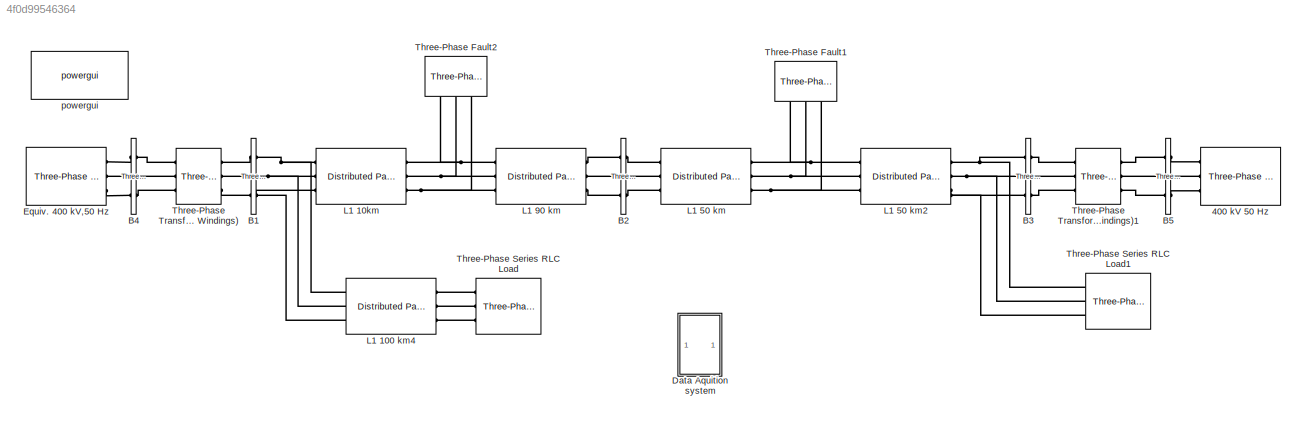
MODEL slx_4f0d99546364
KIND model
CONFIG AbsTol = auto
CONFIG EnableMultiTasking = on
CONFIG FixedStep = auto
CONFIG MaxStep = auto
CONFIG MinStep = auto
CONFIG RelTol = 1e-3
CONFIG SampleTimeConstraint = Unconstrained
CONFIG Solver = ode23tb
CONFIG SolverName = ode23tb
CONFIG StartTime = 0.0
CONFIG StopTime = 1
BLOCK [Reference] 400 kV 50 Hz  REF=powerlib/Electrical
Sources/Three-Phase Source
  Ports = [0, 0, 0, 0, 0, 0, 3]
  SourceBlock = powerlib/Electrical\nSources/Three-Phase Source
  SourceProductBaseCode = PS
  SourceProductName = Simscape Power Systems
  SourceType = Three-Phase Source
BLOCK [Reference] B1  REF=powerlib/Measurements/Three-Phase
V-I Measurement
  Ports = [0, 0, 0, 0, 0, 3, 3]
  SourceBlock = powerlib/Measurements/Three-Phase\nV-I Measurement
  SourceProductBaseCode = PS
  SourceProductName = Simscape Power Systems
  SourceType = Three-Phase VI Measurement
BLOCK [Reference] B2  REF=powerlib/Measurements/Three-Phase
V-I Measurement
  Ports = [0, 0, 0, 0, 0, 3, 3]
  SourceBlock = powerlib/Measurements/Three-Phase\nV-I Measurement
  SourceProductBaseCode = PS
  SourceProductName = Simscape Power Systems
  SourceType = Three-Phase VI Measurement
BLOCK [Reference] B3  REF=powerlib/Measurements/Three-Phase
V-I Measurement
  Ports = [0, 0, 0, 0, 0, 3, 3]
  SourceBlock = powerlib/Measurements/Three-Phase\nV-I Measurement
  SourceProductBaseCode = PS
  SourceProductName = Simscape Power Systems
  SourceType = Three-Phase VI Measurement
BLOCK [Reference] B4  REF=powerlib/Measurements/Three-Phase
V-I Measurement
  Ports = [0, 0, 0, 0, 0, 3, 3]
  SourceBlock = powerlib/Measurements/Three-Phase\nV-I Measurement
  SourceProductBaseCode = PS
  SourceProductName = Simscape Power Systems
  SourceType = Three-Phase VI Measurement
BLOCK [Reference] B5  REF=powerlib/Measurements/Three-Phase
V-I Measurement
  Ports = [0, 0, 0, 0, 0, 3, 3]
  SourceBlock = powerlib/Measurements/Three-Phase\nV-I Measurement
  SourceProductBaseCode = PS
  SourceProductName = Simscape Power Systems
  SourceType = Three-Phase VI Measurement
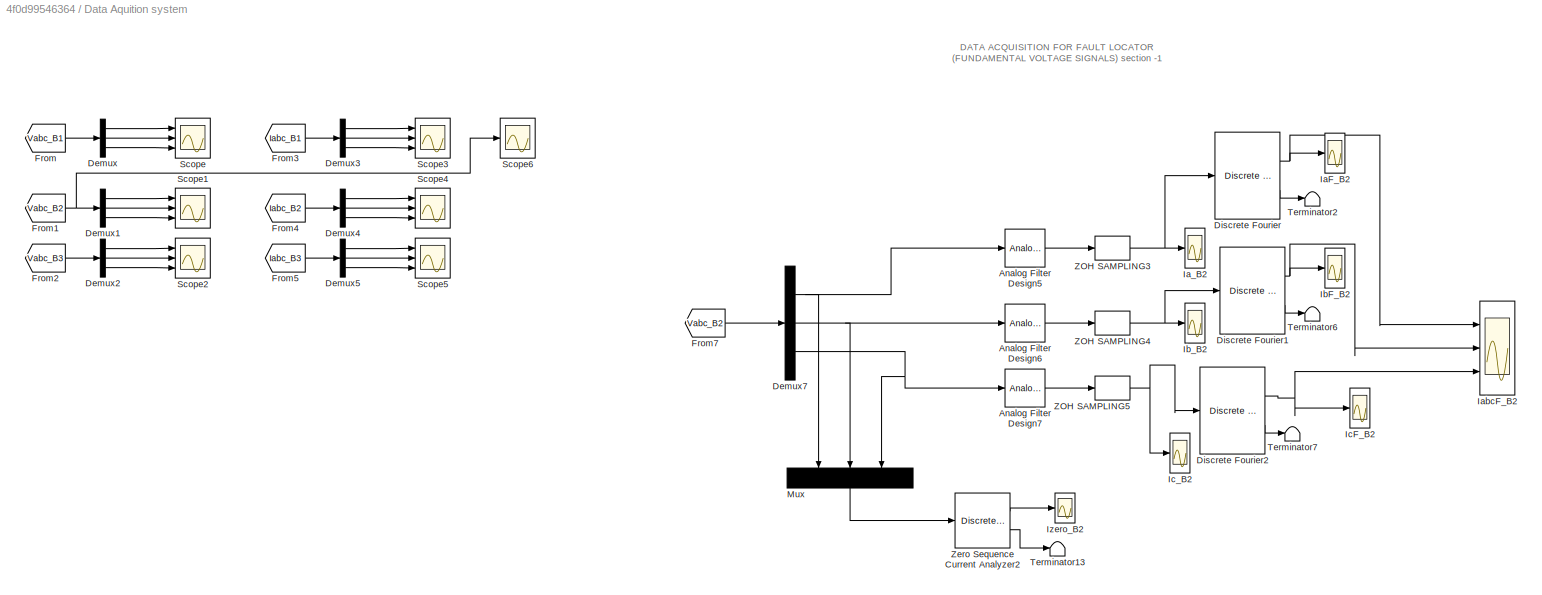
BLOCK [SubSystem] Data Aquition system
  Ports = []
  RequestExecContextInheritance = off
  Variant = off
BLOCK [Scope] Data Aquition system/ Izero_B2
  NumInputPorts = 1
  Ports = [1]
  ScopeSpecificationString = Simulink.scopes.TimeScopeBlockCfg('CurrentConfiguration', extmgr.ConfigurationSet(extmgr.Configuration('Core','General UI',true),extmgr.Configuration('Core','Source UI',true),extmgr.Configuration('Sources','WiredSimulink',true,'DataLogging',true,'DataLoggingVariableName','Izero_B2','DataLoggingMaxPoints','2001','SampleTime','1e-3','DataLoggingLimitDataPoints',true,'DataLoggingSaveFormat','Array','...<+1910ch>
BLOCK [Reference] Data Aquition system/Analog Filter Design5  REF=dsparch4/Analog
Filter Design
  Ports = [1, 1]
  SourceBlock = dsparch4/Analog\nFilter Design
  SourceProductBaseCode = DS
  SourceProductName = DSP System Toolbox
  SourceType = Analog Filter Design
BLOCK [Reference] Data Aquition system/Analog Filter Design6  REF=dsparch4/Analog
Filter Design
  Ports = [1, 1]
  SourceBlock = dsparch4/Analog\nFilter Design
  SourceProductBaseCode = DS
  SourceProductName = DSP System Toolbox
  SourceType = Analog Filter Design
BLOCK [Reference] Data Aquition system/Analog Filter Design7  REF=dsparch4/Analog
Filter Design
  Ports = [1, 1]
  SourceBlock = dsparch4/Analog\nFilter Design
  SourceProductBaseCode = DS
  SourceProductName = DSP System Toolbox
  SourceType = Analog Filter Design
BLOCK [Demux] Data Aquition system/Demux
  DisplayOption = bar
  Outputs = 3
  Ports = [1, 3]
BLOCK [Demux] Data Aquition system/Demux1
  DisplayOption = bar
  Outputs = 3
  Ports = [1, 3]
BLOCK [Demux] Data Aquition system/Demux2
  DisplayOption = bar
  Outputs = 3
  Ports = [1, 3]
BLOCK [Demux] Data Aquition system/Demux3
  DisplayOption = bar
  Outputs = 3
  Ports = [1, 3]
BLOCK [Demux] Data Aquition system/Demux4
  DisplayOption = bar
  Outputs = 3
  Ports = [1, 3]
BLOCK [Demux] Data Aquition system/Demux5
  DisplayOption = bar
  Outputs = 3
  Ports = [1, 3]
BLOCK [Demux] Data Aquition system/Demux7
  DisplayOption = bar
  Outputs = 3
  Ports = [1, 3]
BLOCK [Reference] Data Aquition system/Discrete Fourier  REF=powerlib_extras/Discrete
Measurements/Discrete 
Fourier
  Ports = [1, 2]
  SourceBlock = powerlib_extras/Discrete\nMeasurements/Discrete \nFourier
  SourceType = Discrete Fourier
BLOCK [Reference] Data Aquition system/Discrete Fourier1  REF=powerlib_extras/Discrete
Measurements/Discrete 
Fourier
  Ports = [1, 2]
  SourceBlock = powerlib_extras/Discrete\nMeasurements/Discrete \nFourier
  SourceType = Discrete Fourier
BLOCK [Reference] Data Aquition system/Discrete Fourier2  REF=powerlib_extras/Discrete
Measurements/Discrete 
Fourier
  Ports = [1, 2]
  SourceBlock = powerlib_extras/Discrete\nMeasurements/Discrete \nFourier
  SourceType = Discrete Fourier
BLOCK [From] Data Aquition system/From
  GotoTag = Vabc_B1
  TagVisibility = global
BLOCK [From] Data Aquition system/From1
  GotoTag = Vabc_B2
  TagVisibility = global
BLOCK [From] Data Aquition system/From2
  GotoTag = Vabc_B3
  TagVisibility = global
BLOCK [From] Data Aquition system/From3
  GotoTag = Iabc_B1
  TagVisibility = global
BLOCK [From] Data Aquition system/From4
  GotoTag = Iabc_B2
  TagVisibility = global
BLOCK [From] Data Aquition system/From5
  GotoTag = Iabc_B3
  TagVisibility = global
BLOCK [From] Data Aquition system/From7
  GotoTag = Vabc_B2
  TagVisibility = global
BLOCK [Scope] Data Aquition system/IaF_B2
  NumInputPorts = 1
  Ports = [1]
  ScopeSpecificationString = Simulink.scopes.TimeScopeBlockCfg('CurrentConfiguration', extmgr.ConfigurationSet(extmgr.Configuration('Core','General UI',true),extmgr.Configuration('Core','Source UI',true),extmgr.Configuration('Sources','WiredSimulink',true,'DataLogging',true,'DataLoggingVariableName','IaF_B2','DataLoggingMaxPoints','2000','SampleTime','1e-3','DataLoggingSaveFormat','Array','DataLoggingDecimation','1','DataLogg...<+1864ch>
BLOCK [Scope] Data Aquition system/Ia_B2
  NumInputPorts = 1
  Ports = [1]
  ScopeSpecificationString = Simulink.scopes.TimeScopeBlockCfg('CurrentConfiguration', extmgr.ConfigurationSet(extmgr.Configuration('Core','General UI',true),extmgr.Configuration('Core','Source UI',true),extmgr.Configuration('Sources','WiredSimulink',true,'DataLogging',true,'DataLoggingVariableName','Ia_B2','DataLoggingMaxPoints','2000','SampleTime','1e-3','DataLoggingSaveFormat','Array','DataLoggingDecimation','1','DataLoggi...<+1856ch>
BLOCK [Scope] Data Aquition system/IabcF_B2
  NumInputPorts = 3
  Ports = [3]
  ScopeSpecificationString = Simulink.scopes.TimeScopeBlockCfg('CurrentConfiguration', extmgr.ConfigurationSet(extmgr.Configuration('Core','General UI',true),extmgr.Configuration('Core','Source UI',true),extmgr.Configuration('Sources','WiredSimulink',true,'DataLogging',true,'DataLoggingVariableName','Iabcf_B2','DataLoggingSaveFormat','Structure','DataLoggingMaxPoints','2000','SampleTime','1e-3','DataLoggingDecimation','1','Da...<+3266ch>
BLOCK [Scope] Data Aquition system/IbF_B2
  NumInputPorts = 1
  Ports = [1]
  ScopeSpecificationString = Simulink.scopes.TimeScopeBlockCfg('CurrentConfiguration', extmgr.ConfigurationSet(extmgr.Configuration('Core','General UI',true),extmgr.Configuration('Core','Source UI',true),extmgr.Configuration('Sources','WiredSimulink',true,'DataLogging',true,'DataLoggingVariableName','IbF_B2','DataLoggingMaxPoints','2000','SampleTime','1e-3','DataLoggingSaveFormat','Array','DataLoggingDecimation','1','DataLogg...<+1907ch>
BLOCK [Scope] Data Aquition system/Ib_B2
  NumInputPorts = 1
  Ports = [1]
  ScopeSpecificationString = Simulink.scopes.TimeScopeBlockCfg('CurrentConfiguration', extmgr.ConfigurationSet(extmgr.Configuration('Core','General UI',true),extmgr.Configuration('Core','Source UI',true),extmgr.Configuration('Sources','WiredSimulink',true,'DataLogging',true,'DataLoggingVariableName','Ib_B2','DataLoggingMaxPoints','2000','SampleTime','1e-3','DataLoggingSaveFormat','Array','DataLoggingDecimation','1','DataLoggi...<+1854ch>
BLOCK [Scope] Data Aquition system/IcF_B2
  NumInputPorts = 1
  Ports = [1]
  ScopeSpecificationString = Simulink.scopes.TimeScopeBlockCfg('CurrentConfiguration', extmgr.ConfigurationSet(extmgr.Configuration('Core','General UI',true),extmgr.Configuration('Core','Source UI',true),extmgr.Configuration('Sources','WiredSimulink',true,'DataLogging',true,'DataLoggingVariableName','IcF_B2','DataLoggingMaxPoints','2000','SampleTime','1e-3','DataLoggingSaveFormat','Array','DataLoggingDecimation','1','DataLogg...<+1854ch>
BLOCK [Scope] Data Aquition system/Ic_B2
  NumInputPorts = 1
  Ports = [1]
  ScopeSpecificationString = Simulink.scopes.TimeScopeBlockCfg('CurrentConfiguration', extmgr.ConfigurationSet(extmgr.Configuration('Core','General UI',true),extmgr.Configuration('Core','Source UI',true),extmgr.Configuration('Sources','WiredSimulink',true,'DataLogging',true,'DataLoggingVariableName','Ic_B2','DataLoggingMaxPoints','2000','SampleTime','1e-3','DataLoggingSaveFormat','Array','DataLoggingDecimation','1','DataLoggi...<+1713ch>
BLOCK [Mux] Data Aquition system/Mux
  DisplayOption = bar
  Inputs = 3
  Ports = [3, 1]
BLOCK [Scope] Data Aquition system/Scope
  NumInputPorts = 3
  Ports = [3]
  ScopeSpecificationString = Simulink.scopes.TimeScopeBlockCfg('CurrentConfiguration', extmgr.ConfigurationSet(extmgr.Configuration('Core','General UI',true),extmgr.Configuration('Core','Source UI',true),extmgr.Configuration('Sources','WiredSimulink',true,'DataLoggingSaveFormat','StructureWithTime','DataLoggingDecimation','1'),extmgr.Configuration('Visuals','Time Domain',true,'TimeAxisLabels','All','SerializedDisplays',{struc...<+3007ch>
BLOCK [Scope] Data Aquition system/Scope1
  NumInputPorts = 3
  Ports = [3]
  ScopeSpecificationString = Simulink.scopes.TimeScopeBlockCfg('CurrentConfiguration', extmgr.ConfigurationSet(extmgr.Configuration('Core','General UI',true),extmgr.Configuration('Core','Source UI',true),extmgr.Configuration('Sources','WiredSimulink',true,'DataLoggingSaveFormat','StructureWithTime','DataLoggingDecimation','1','DataLoggingVariableName','ScopeData1'),extmgr.Configuration('Visuals','Time Domain',true,'TimeAxisLa...<+3049ch>
BLOCK [Scope] Data Aquition system/Scope2
  NumInputPorts = 3
  Ports = [3]
  ScopeSpecificationString = Simulink.scopes.TimeScopeBlockCfg('CurrentConfiguration', extmgr.ConfigurationSet(extmgr.Configuration('Core','General UI',true),extmgr.Configuration('Core','Source UI',true),extmgr.Configuration('Sources','WiredSimulink',true,'DataLoggingSaveFormat','StructureWithTime','DataLoggingDecimation','1','DataLoggingVariableName','ScopeData2'),extmgr.Configuration('Visuals','Time Domain',true,'TimeAxisLa...<+2982ch>
BLOCK [Scope] Data Aquition system/Scope3
  NumInputPorts = 3
  Ports = [3]
  ScopeSpecificationString = Simulink.scopes.TimeScopeBlockCfg('CurrentConfiguration', extmgr.ConfigurationSet(extmgr.Configuration('Core','General UI',true),extmgr.Configuration('Core','Source UI',true),extmgr.Configuration('Sources','WiredSimulink',true,'DataLoggingSaveFormat','Array','DataLoggingDecimation','1','DataLoggingVariableName','ScopeData3'),extmgr.Configuration('Visuals','Time Domain',true,'TimeAxisLabels','All',...<+3097ch>
BLOCK [Scope] Data Aquition system/Scope4
  NumInputPorts = 3
  Ports = [3]
  ScopeSpecificationString = Simulink.scopes.TimeScopeBlockCfg('CurrentConfiguration', extmgr.ConfigurationSet(extmgr.Configuration('Core','General UI',true),extmgr.Configuration('Core','Source UI',true),extmgr.Configuration('Sources','WiredSimulink',true,'DataLoggingSaveFormat','StructureWithTime','DataLoggingDecimation','1','DataLoggingVariableName','ScopeData4'),extmgr.Configuration('Visuals','Time Domain',true,'TimeAxisLa...<+3347ch>
BLOCK [Scope] Data Aquition system/Scope5
  NumInputPorts = 3
  Ports = [3]
  ScopeSpecificationString = Simulink.scopes.TimeScopeBlockCfg('CurrentConfiguration', extmgr.ConfigurationSet(extmgr.Configuration('Core','General UI',true),extmgr.Configuration('Core','Source UI',true),extmgr.Configuration('Sources','WiredSimulink',true,'DataLoggingSaveFormat','StructureWithTime','DataLoggingDecimation','1','DataLoggingVariableName','ScopeData5'),extmgr.Configuration('Visuals','Time Domain',true,'TimeAxisLa...<+2984ch>
BLOCK [Scope] Data Aquition system/Scope6
  NumInputPorts = 1
  Ports = [1]
  ScopeSpecificationString = Simulink.scopes.TimeScopeBlockCfg('CurrentConfiguration', extmgr.ConfigurationSet(extmgr.Configuration('Core','General UI',true),extmgr.Configuration('Core','Source UI',true),extmgr.Configuration('Sources','WiredSimulink',true,'DataLoggingSaveFormat','Array','DataLoggingDecimation','1','DataLoggingVariableName','ScopeData6','DataLogging',true),extmgr.Configuration('Visuals','Time Domain',true,'Tim...<+3426ch>
BLOCK [Terminator] Data Aquition system/Terminator13
BLOCK [Terminator] Data Aquition system/Terminator2
BLOCK [Terminator] Data Aquition system/Terminator6
BLOCK [Terminator] Data Aquition system/Terminator7
BLOCK [ZeroOrderHold] Data Aquition system/ZOH SAMPLING3
  SampleTime = 1e-3
BLOCK [ZeroOrderHold] Data Aquition system/ZOH SAMPLING4
  SampleTime = 1e-3
BLOCK [ZeroOrderHold] Data Aquition system/ZOH SAMPLING5
  SampleTime = 1e-3
BLOCK [Reference] Data Aquition system/Zero Sequence Current Analyzer2  REF=powerlib_extras/Discrete
Measurements/Discrete 3-phase
Sequence Analyzer
  Ports = [1, 2]
  SourceBlock = powerlib_extras/Discrete\nMeasurements/Discrete 3-phase\nSequence Analyzer
  SourceType = Discrete 3-Phase Sequence Analyzer
BLOCK [Reference] Equiv. 400 kV,50 Hz  REF=powerlib/Electrical
Sources/Three-Phase Source
  Ports = [0, 0, 0, 0, 0, 0, 3]
  SourceBlock = powerlib/Electrical\nSources/Three-Phase Source
  SourceProductBaseCode = PS
  SourceProductName = Simscape Power Systems
  SourceType = Three-Phase Source
BLOCK [Reference] L1 100 km4  REF=powerlib/Elements/Distributed Parameters Line
  AttributesFormatString = \n
  Ports = [0, 0, 0, 0, 0, 3, 3]
  SourceBlock = powerlib/Elements/Distributed Parameters Line
  SourceProductBaseCode = PS
  SourceProductName = Simscape Power Systems
  SourceType = Distributed Parameters Line
BLOCK [Reference] L1 10km  REF=powerlib/Elements/Distributed Parameters Line
  AttributesFormatString = \n
  Ports = [0, 0, 0, 0, 0, 3, 3]
  SourceBlock = powerlib/Elements/Distributed Parameters Line
  SourceProductBaseCode = PS
  SourceProductName = Simscape Power Systems
  SourceType = Distributed Parameters Line
BLOCK [Reference] L1 50 km  REF=powerlib/Elements/Distributed Parameters Line
  AttributesFormatString = \n
  Ports = [0, 0, 0, 0, 0, 3, 3]
  SourceBlock = powerlib/Elements/Distributed Parameters Line
  SourceProductBaseCode = PS
  SourceProductName = Simscape Power Systems
  SourceType = Distributed Parameters Line
BLOCK [Reference] L1 50 km2  REF=powerlib/Elements/Distributed Parameters Line
  AttributesFormatString = \n
  Ports = [0, 0, 0, 0, 0, 3, 3]
  SourceBlock = powerlib/Elements/Distributed Parameters Line
  SourceProductBaseCode = PS
  SourceProductName = Simscape Power Systems
  SourceType = Distributed Parameters Line
BLOCK [Reference] L1 90 km  REF=powerlib/Elements/Distributed Parameters Line
  AttributesFormatString = \n
  Ports = [0, 0, 0, 0, 0, 3, 3]
  SourceBlock = powerlib/Elements/Distributed Parameters Line
  SourceProductBaseCode = PS
  SourceProductName = Simscape Power Systems
  SourceType = Distributed Parameters Line
BLOCK [Reference] Three-Phase Fault1  REF=powerlib/Elements/Three-Phase Fault
  Ports = [0, 0, 0, 0, 0, 3]
  SourceBlock = powerlib/Elements/Three-Phase Fault
  SourceProductBaseCode = PS
  SourceProductName = Simscape Power Systems
  SourceType = Three-Phase Fault
BLOCK [Reference] Three-Phase Fault2  REF=powerlib/Elements/Three-Phase Fault
  Ports = [0, 0, 0, 0, 0, 3]
  SourceBlock = powerlib/Elements/Three-Phase Fault
  SourceProductBaseCode = PS
  SourceProductName = Simscape Power Systems
  SourceType = Three-Phase Fault
BLOCK [Reference] Three-Phase Series RLC Load  REF=powerlib/Elements/Three-Phase
Series RLC Load
  AttributesFormatString = \n
  Ports = [0, 0, 0, 0, 0, 3]
  SourceBlock = powerlib/Elements/Three-Phase\nSeries RLC Load
  SourceProductBaseCode = PS
  SourceProductName = Simscape Power Systems
  SourceType = Three-Phase Series RLC Load
BLOCK [Reference] Three-Phase Series RLC Load1  REF=powerlib/Elements/Three-Phase
Series RLC Load
  AttributesFormatString = \n
  Ports = [0, 0, 0, 0, 0, 3]
  SourceBlock = powerlib/Elements/Three-Phase\nSeries RLC Load
  SourceProductBaseCode = PS
  SourceProductName = Simscape Power Systems
  SourceType = Three-Phase Series RLC Load
BLOCK [Reference] Three-Phase Transformer (Two Windings)  REF=powerlib/Elements/Three-Phase
Transformer
(Two Windings)
  Ports = [0, 0, 0, 0, 0, 3, 3]
  SourceBlock = powerlib/Elements/Three-Phase\nTransformer\n(Two Windings)
  SourceProductBaseCode = PS
  SourceProductName = Simscape Power Systems
  SourceType = Three-Phase Transformer (Two Windings)
BLOCK [Reference] Three-Phase Transformer (Two Windings)1  REF=powerlib/Elements/Three-Phase
Transformer
(Two Windings)
  Ports = [0, 0, 0, 0, 0, 3, 3]
  SourceBlock = powerlib/Elements/Three-Phase\nTransformer\n(Two Windings)
  SourceProductBaseCode = PS
  SourceProductName = Simscape Power Systems
  SourceType = Three-Phase Transformer (Two Windings)
BLOCK [Reference] powergui  REF=powerlib/powergui
  Ports = []
  Priority = 1
  SourceBlock = powerlib/powergui
  SourceProductBaseCode = PS
  SourceProductName = Simscape Power Systems
  SourceType = PSB option menu block
ANNOTATION Data Aquition system: DATA ACQUISITION FOR FAULT LOCATOR (FUNDAMENTAL VOLTAGE SIGNALS) section -1
LINE Data Aquition system/Analog Filter Design5:1 -> Data Aquition system/ZOH SAMPLING3:1
LINE Data Aquition system/Analog Filter Design6:1 -> Data Aquition system/ZOH SAMPLING4:1
LINE Data Aquition system/Analog Filter Design7:1 -> Data Aquition system/ZOH SAMPLING5:1
LINE Data Aquition system/Demux1:1 -> Data Aquition system/Scope1:1
LINE Data Aquition system/Demux1:2 -> Data Aquition system/Scope1:2
LINE Data Aquition system/Demux1:3 -> Data Aquition system/Scope1:3
LINE Data Aquition system/Demux2:1 -> Data Aquition system/Scope2:1
LINE Data Aquition system/Demux2:2 -> Data Aquition system/Scope2:2
LINE Data Aquition system/Demux2:3 -> Data Aquition system/Scope2:3
LINE Data Aquition system/Demux3:1 -> Data Aquition system/Scope3:1
LINE Data Aquition system/Demux3:2 -> Data Aquition system/Scope3:2
LINE Data Aquition system/Demux3:3 -> Data Aquition system/Scope3:3
LINE Data Aquition system/Demux4:1 -> Data Aquition system/Scope4:1
LINE Data Aquition system/Demux4:2 -> Data Aquition system/Scope4:2
LINE Data Aquition system/Demux4:3 -> Data Aquition system/Scope4:3
LINE Data Aquition system/Demux5:1 -> Data Aquition system/Scope5:1
LINE Data Aquition system/Demux5:2 -> Data Aquition system/Scope5:2
LINE Data Aquition system/Demux5:3 -> Data Aquition system/Scope5:3
NET Data Aquition system/Demux7:1 -> Data Aquition system/Analog Filter Design5:1, Data Aquition system/Mux:1
NET Data Aquition system/Demux7:2 -> Data Aquition system/Analog Filter Design6:1, Data Aquition system/Mux:2
NET Data Aquition system/Demux7:3 -> Data Aquition system/Analog Filter Design7:1, Data Aquition system/Mux:3
LINE Data Aquition system/Demux:1 -> Data Aquition system/Scope:1
LINE Data Aquition system/Demux:2 -> Data Aquition system/Scope:2
LINE Data Aquition system/Demux:3 -> Data Aquition system/Scope:3
NET Data Aquition system/Discrete Fourier1:1 -> Data Aquition system/IabcF_B2:2, Data Aquition system/IbF_B2:1
LINE Data Aquition system/Discrete Fourier1:2 -> Data Aquition system/Terminator6:1
NET Data Aquition system/Discrete Fourier2:1 -> Data Aquition system/IabcF_B2:3, Data Aquition system/IcF_B2:1
LINE Data Aquition system/Discrete Fourier2:2 -> Data Aquition system/Terminator7:1
NET Data Aquition system/Discrete Fourier:1 -> Data Aquition system/IaF_B2:1, Data Aquition system/IabcF_B2:1
LINE Data Aquition system/Discrete Fourier:2 -> Data Aquition system/Terminator2:1
NET Data Aquition system/From1:1 -> Data Aquition system/Demux1:1, Data Aquition system/Scope6:1
LINE Data Aquition system/From2:1 -> Data Aquition system/Demux2:1
LINE Data Aquition system/From3:1 -> Data Aquition system/Demux3:1
LINE Data Aquition system/From4:1 -> Data Aquition system/Demux4:1
LINE Data Aquition system/From5:1 -> Data Aquition system/Demux5:1
LINE Data Aquition system/From7:1 -> Data Aquition system/Demux7:1
LINE Data Aquition system/From:1 -> Data Aquition system/Demux:1
LINE Data Aquition system/Mux:1 -> Data Aquition system/Zero Sequence Current Analyzer2:1
NET Data Aquition system/ZOH SAMPLING3:1 -> Data Aquition system/Discrete Fourier:1, Data Aquition system/Ia_B2:1
NET Data Aquition system/ZOH SAMPLING4:1 -> Data Aquition system/Discrete Fourier1:1, Data Aquition system/Ib_B2:1
NET Data Aquition system/ZOH SAMPLING5:1 -> Data Aquition system/Discrete Fourier2:1, Data Aquition system/Ic_B2:1
LINE Data Aquition system/Zero Sequence Current Analyzer2:1 -> Data Aquition system/ Izero_B2:1
LINE Data Aquition system/Zero Sequence Current Analyzer2:2 -> Data Aquition system/Terminator13:1
PLINE 400 kV 50 Hz:RConn1 -- B5:RConn1
PLINE 400 kV 50 Hz:RConn2 -- B5:RConn2
PLINE 400 kV 50 Hz:RConn3 -- B5:RConn3
PLINE B1:LConn1 -- Three-Phase Transformer (Two Windings):RConn1
PLINE B1:LConn2 -- Three-Phase Transformer (Two Windings):RConn2
PLINE B1:LConn3 -- Three-Phase Transformer (Two Windings):RConn3
PNET net1: B1:RConn1 -- L1 100 km4:LConn1 -- L1 10km:LConn1
PNET net2: B1:RConn2 -- L1 100 km4:LConn2 -- L1 10km:LConn2
PNET net3: B1:RConn3 -- L1 100 km4:LConn3 -- L1 10km:LConn3
PLINE B2:LConn1 -- L1 90 km:RConn1
PLINE B2:LConn2 -- L1 90 km:RConn2
PLINE B2:LConn3 -- L1 90 km:RConn3
PLINE B2:RConn1 -- L1 50 km:LConn1
PLINE B2:RConn2 -- L1 50 km:LConn2
PLINE B2:RConn3 -- L1 50 km:LConn3
PNET net4: B3:LConn1 -- L1 50 km2:RConn1 -- Three-Phase Series RLC Load1:LConn1
PNET net5: B3:LConn2 -- L1 50 km2:RConn2 -- Three-Phase Series RLC Load1:LConn2
PNET net6: B3:LConn3 -- L1 50 km2:RConn3 -- Three-Phase Series RLC Load1:LConn3
PLINE B3:RConn1 -- Three-Phase Transformer (Two Windings)1:LConn1
PLINE B3:RConn2 -- Three-Phase Transformer (Two Windings)1:LConn2
PLINE B3:RConn3 -- Three-Phase Transformer (Two Windings)1:LConn3
PLINE B4:LConn1 -- Equiv. 400 kV,50 Hz:RConn1
PLINE B4:LConn2 -- Equiv. 400 kV,50 Hz:RConn2
PLINE B4:LConn3 -- Equiv. 400 kV,50 Hz:RConn3
PLINE B4:RConn1 -- Three-Phase Transformer (Two Windings):LConn1
PLINE B4:RConn2 -- Three-Phase Transformer (Two Windings):LConn2
PLINE B4:RConn3 -- Three-Phase Transformer (Two Windings):LConn3
PLINE B5:LConn1 -- Three-Phase Transformer (Two Windings)1:RConn1
PLINE B5:LConn2 -- Three-Phase Transformer (Two Windings)1:RConn2
PLINE B5:LConn3 -- Three-Phase Transformer (Two Windings)1:RConn3
PLINE L1 100 km4:RConn1 -- Three-Phase Series RLC Load:LConn1
PLINE L1 100 km4:RConn2 -- Three-Phase Series RLC Load:LConn2
PLINE L1 100 km4:RConn3 -- Three-Phase Series RLC Load:LConn3
PNET net7: L1 10km:RConn1 -- L1 90 km:LConn1 -- Three-Phase Fault2:LConn1
PNET net8: L1 10km:RConn2 -- L1 90 km:LConn2 -- Three-Phase Fault2:LConn2
PNET net9: L1 10km:RConn3 -- L1 90 km:LConn3 -- Three-Phase Fault2:LConn3
PNET net10: L1 50 km2:LConn1 -- L1 50 km:RConn1 -- Three-Phase Fault1:LConn1
PNET net11: L1 50 km2:LConn2 -- L1 50 km:RConn2 -- Three-Phase Fault1:LConn2
PNET net12: L1 50 km2:LConn3 -- L1 50 km:RConn3 -- Three-Phase Fault1:LConn3
note: NET lines group one-source signal fan-out (src -> all destinations, sorted); 1:1 wires keep LINE; PNET lines group multi-terminal physical nets as a canonical sorted terminal list (undirected conserving connections); 2-terminal nets keep the pairwise PLINE form
